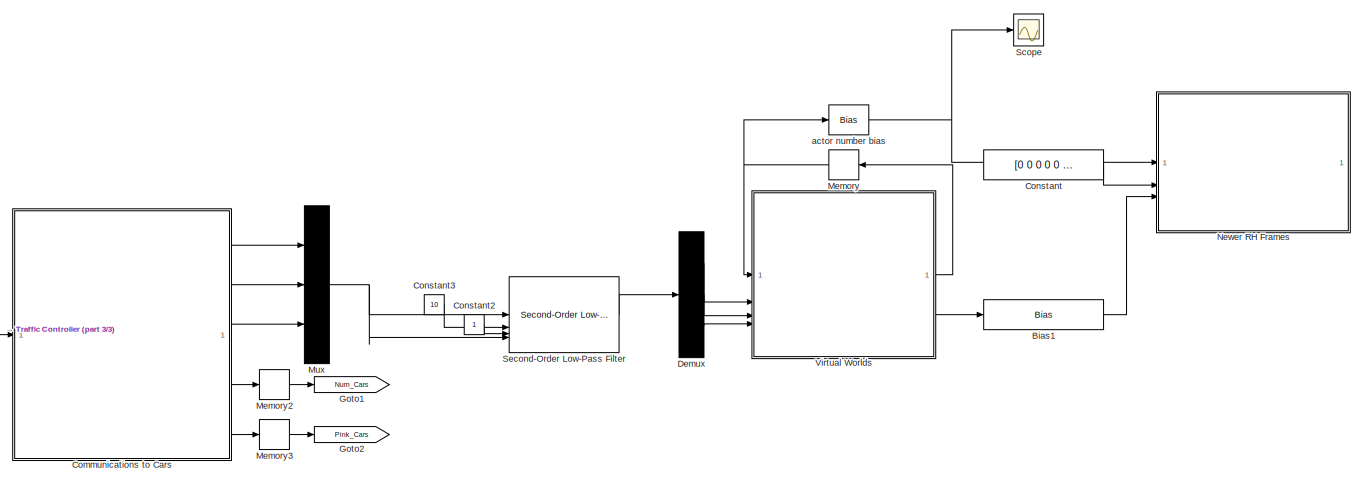
[diagram: root canvas - part 1/3, full width, middle band]
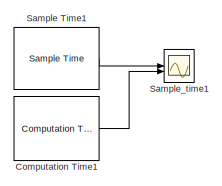
[diagram: root canvas - part 2/3, top left region]
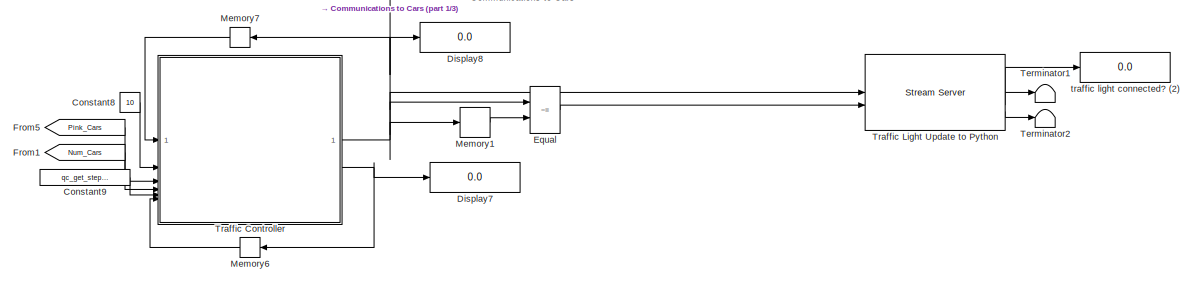
[diagram: root canvas - part 3/3, bottom center region]
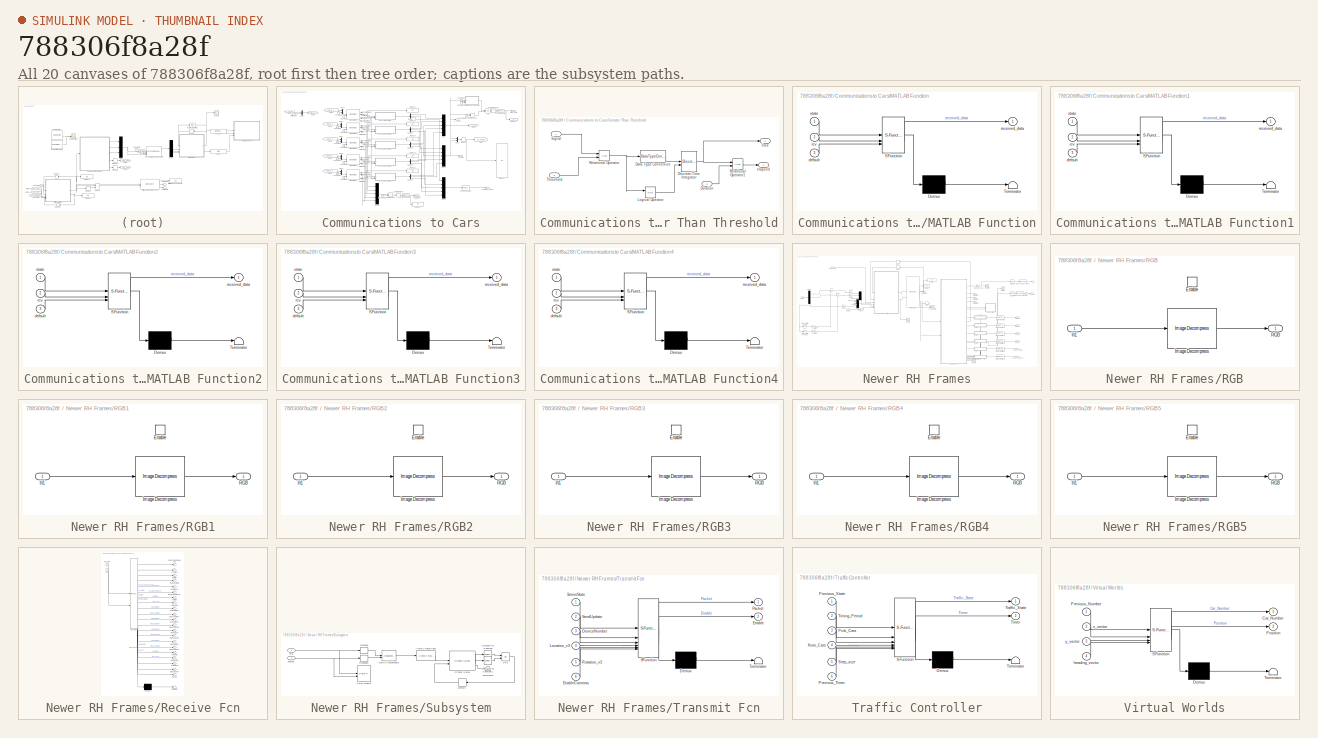
[diagram: thumbnail index - all 20 canvases of the model, root first then tree order]
MODEL slx_788306f8a28f
KIND model
CONFIG AbsTol = auto
CONFIG EnableMultiTasking = on
CONFIG FixedStep = Controller_Sample_Time
CONFIG MaxStep = auto
CONFIG MinStep = auto
CONFIG RelTol = 1e-3
CONFIG SampleTimeConstraint = Unconstrained
CONFIG SolverName = ode1
CONFIG StartTime = 0.0
CONFIG StopTime = inf
BLOCK [Bias] Bias1
  SaturateOnIntegerOverflow = off
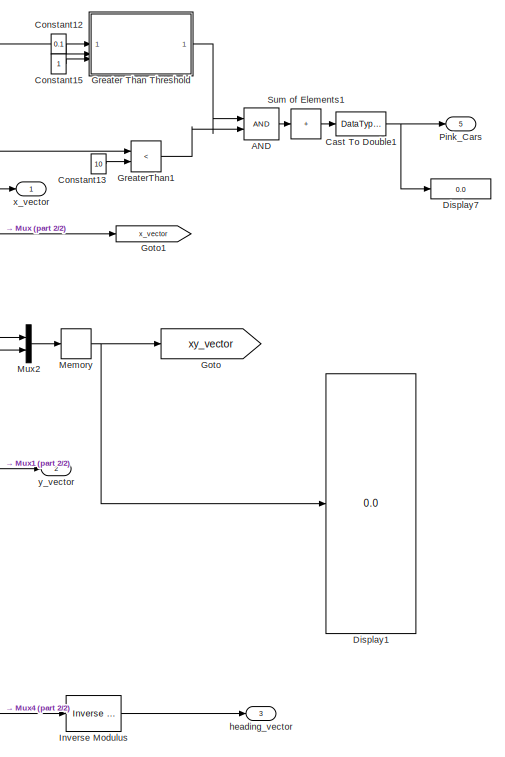
[diagram: Communications to Cars - part 1/2, right side, full height]
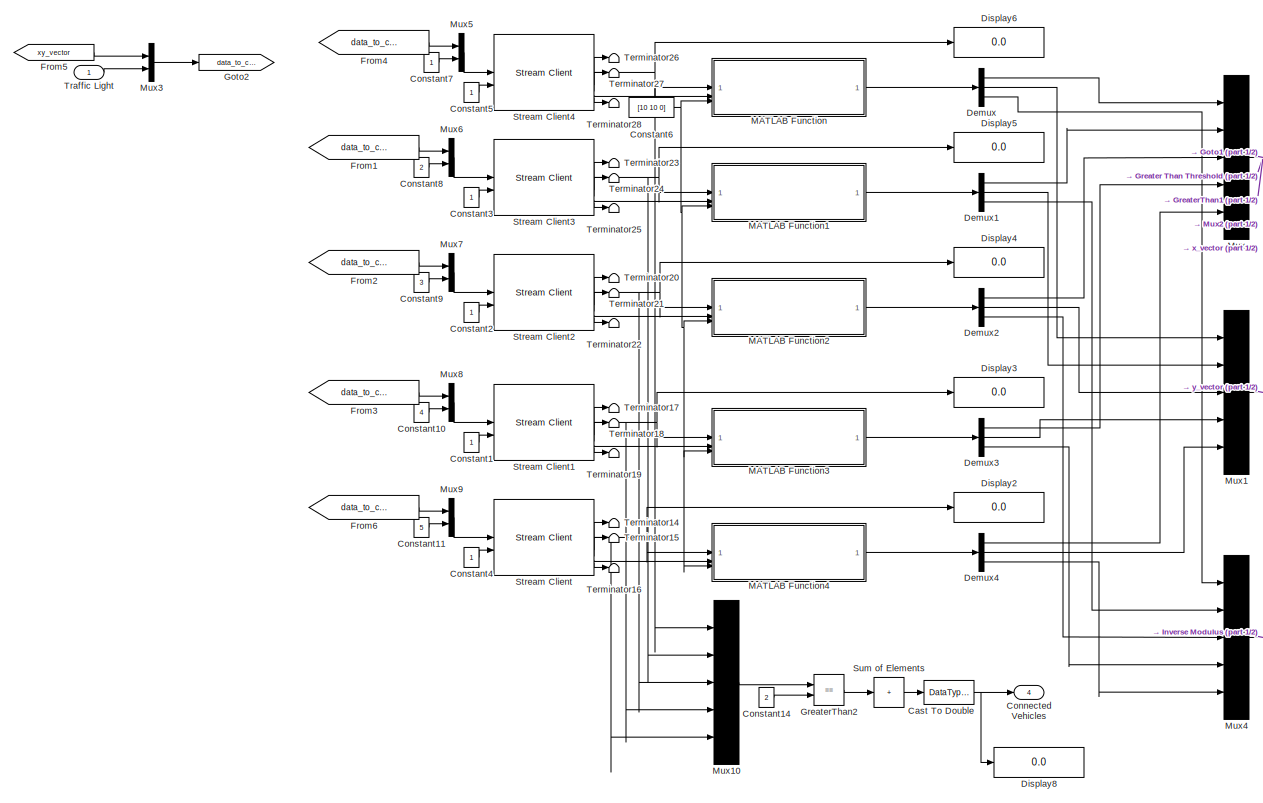
[diagram: Communications to Cars - part 2/2, center side, full height]
BLOCK [SubSystem] Communications to Cars
BLOCK [Logic] Communications to Cars/AND
  AllPortsSameDT = off
  IconShape = distinctive
  OutDataTypeStr = boolean
BLOCK [DataTypeConversion] Communications to Cars/Cast To Double
  OutDataTypeStr = double
  RndMeth = Floor
  SaturateOnIntegerOverflow = off
BLOCK [DataTypeConversion] Communications to Cars/Cast To Double1
  OutDataTypeStr = double
  RndMeth = Floor
  SaturateOnIntegerOverflow = off
BLOCK [Outport] Communications to Cars/Connected Vehicles
  Port = 4
BLOCK [Constant] Communications to Cars/Constant1
BLOCK [Constant] Communications to Cars/Constant10
  Value = 4
BLOCK [Constant] Communications to Cars/Constant11
  Value = 5
BLOCK [Constant] Communications to Cars/Constant12
  Value = 0.1
BLOCK [Constant] Communications to Cars/Constant13
  Value = 10
BLOCK [Constant] Communications to Cars/Constant14
  Value = 2
BLOCK [Constant] Communications to Cars/Constant15
BLOCK [Constant] Communications to Cars/Constant2
BLOCK [Constant] Communications to Cars/Constant3
BLOCK [Constant] Communications to Cars/Constant4
BLOCK [Constant] Communications to Cars/Constant5
BLOCK [Constant] Communications to Cars/Constant6
  Value = [10 10 0]
BLOCK [Constant] Communications to Cars/Constant7
BLOCK [Constant] Communications to Cars/Constant8
  Value = 2
BLOCK [Constant] Communications to Cars/Constant9
  Value = 3
BLOCK [Demux] Communications to Cars/Demux
  Outputs = 3
BLOCK [Demux] Communications to Cars/Demux1
  Outputs = 3
BLOCK [Demux] Communications to Cars/Demux2
  Outputs = 3
BLOCK [Demux] Communications to Cars/Demux3
  Outputs = 3
BLOCK [Demux] Communications to Cars/Demux4
  Outputs = 3
BLOCK [Display] Communications to Cars/Display1
  Decimation = 100
BLOCK [Display] Communications to Cars/Display2
  Decimation = 100
BLOCK [Display] Communications to Cars/Display3
  Decimation = 100
BLOCK [Display] Communications to Cars/Display4
  Decimation = 100
BLOCK [Display] Communications to Cars/Display5
  Decimation = 100
BLOCK [Display] Communications to Cars/Display6
  Decimation = 100
BLOCK [Display] Communications to Cars/Display7
  Decimation = 100
BLOCK [Display] Communications to Cars/Display8
  Decimation = 100
BLOCK [From] Communications to Cars/From1
  GotoTag = data_to_cars
BLOCK [From] Communications to Cars/From2
  GotoTag = data_to_cars
BLOCK [From] Communications to Cars/From3
  GotoTag = data_to_cars
BLOCK [From] Communications to Cars/From4
  GotoTag = data_to_cars
BLOCK [From] Communications to Cars/From5
  GotoTag = xy_vector
BLOCK [From] Communications to Cars/From6
  GotoTag = data_to_cars
BLOCK [Goto] Communications to Cars/Goto
  GotoTag = xy_vector
BLOCK [Goto] Communications to Cars/Goto1
  GotoTag = x_vector
BLOCK [Goto] Communications to Cars/Goto2
  GotoTag = data_to_cars
BLOCK [SubSystem] Communications to Cars/Greater Than Threshold
BLOCK [DataTypeConversion] Communications to Cars/Greater Than Threshold/Data Type Conversion
  RndMeth = Floor
  SaturateOnIntegerOverflow = off
BLOCK [DiscreteIntegrator] Communications to Cars/Greater Than Threshold/Discrete-Time Integrator
  ExternalReset = level
  ICPrevOutput = DiscIntNeverNeededParam
  ICPrevScaledInput = DiscIntNeverNeededParam
  NameLocation = top
  Priority = 1
  SampleTime = qc_get_step_size
BLOCK [Inport] Communications to Cars/Greater Than Threshold/Duration
  Port = 3
BLOCK [Logic] Communications to Cars/Greater Than Threshold/Logical Operator
  AllPortsSameDT = off
  Operator = NOT
  OutDataTypeStr = boolean
BLOCK [RelationalOperator] Communications to Cars/Greater Than Threshold/Relational Operator
  InputSameDT = off
BLOCK [RelationalOperator] Communications to Cars/Greater Than Threshold/Relational Operator1
  InputSameDT = off
BLOCK [Inport] Communications to Cars/Greater Than Threshold/Signal
BLOCK [Inport] Communications to Cars/Greater Than Threshold/Threshold
  Port = 2
BLOCK [Outport] Communications to Cars/Greater Than Threshold/elapsed
  VectorParamsAs1DForOutWhenUnconnected = off
BLOCK [Outport] Communications to Cars/Greater Than Threshold/time
  Port = 2
  VectorParamsAs1DForOutWhenUnconnected = off
BLOCK [RelationalOperator] Communications to Cars/GreaterThan1
  InputSameDT = off
  Operator = <
  OutDataTypeStr = boolean
  RndMeth = Simplest
BLOCK [RelationalOperator] Communications to Cars/GreaterThan2
  InputSameDT = off
  Operator = ==
  OutDataTypeStr = boolean
  RndMeth = Simplest
BLOCK [Reference] Communications to Cars/Inverse Modulus  REF=quarc_library/Discontinuities/Inverse
Modulus
  SourceBlock = quarc_library/Discontinuities/Inverse\nModulus
  SourceProductName = QUARC Targets
  SourceType = Inverse Modulus
BLOCK [SubSystem] Communications to Cars/MATLAB Function
  ErrorFcn = Stateflow.Translate.translate
  PermitHierarchicalResolution = ExplicitOnly
  SFBlockType = MATLAB Function
  TreatAsAtomicUnit = on
BLOCK [Demux] Communications to Cars/MATLAB Function/ Demux 
  Outputs = 1
BLOCK [S-Function] Communications to Cars/MATLAB Function/ SFunction 
  EnableBusSupport = on
  FunctionName = sf_sfun
  PortCounts = [3 2]
  SFcnIsStateOwnerBlock = off
  SFunctionDeploymentMode = off
  Tag = Stateflow S-Function 2
BLOCK [Terminator] Communications to Cars/MATLAB Function/ Terminator 
BLOCK [Inport] Communications to Cars/MATLAB Function/default
  Port = 3
BLOCK [Inport] Communications to Cars/MATLAB Function/rcv
  Port = 2
BLOCK [Outport] Communications to Cars/MATLAB Function/received_data
  VectorParamsAs1DForOutWhenUnconnected = off
BLOCK [Inport] Communications to Cars/MATLAB Function/state
BLOCK [SubSystem] Communications to Cars/MATLAB Function1
  ErrorFcn = Stateflow.Translate.translate
  PermitHierarchicalResolution = ExplicitOnly
  SFBlockType = MATLAB Function
  TreatAsAtomicUnit = on
BLOCK [Demux] Communications to Cars/MATLAB Function1/ Demux 
  Outputs = 1
BLOCK [S-Function] Communications to Cars/MATLAB Function1/ SFunction 
  EnableBusSupport = on
  FunctionName = sf_sfun
  PortCounts = [3 2]
  SFcnIsStateOwnerBlock = off
  SFunctionDeploymentMode = off
  Tag = Stateflow S-Function 1
BLOCK [Terminator] Communications to Cars/MATLAB Function1/ Terminator 
BLOCK [Inport] Communications to Cars/MATLAB Function1/default
  Port = 3
BLOCK [Inport] Communications to Cars/MATLAB Function1/rcv
  Port = 2
BLOCK [Outport] Communications to Cars/MATLAB Function1/received_data
  VectorParamsAs1DForOutWhenUnconnected = off
BLOCK [Inport] Communications to Cars/MATLAB Function1/state
BLOCK [SubSystem] Communications to Cars/MATLAB Function2
  ErrorFcn = Stateflow.Translate.translate
  PermitHierarchicalResolution = ExplicitOnly
  SFBlockType = MATLAB Function
  TreatAsAtomicUnit = on
BLOCK [Demux] Communications to Cars/MATLAB Function2/ Demux 
  Outputs = 1
BLOCK [S-Function] Communications to Cars/MATLAB Function2/ SFunction 
  EnableBusSupport = on
  FunctionName = sf_sfun
  PortCounts = [3 2]
  SFcnIsStateOwnerBlock = off
  SFunctionDeploymentMode = off
  Tag = Stateflow S-Function 3
BLOCK [Terminator] Communications to Cars/MATLAB Function2/ Terminator 
BLOCK [Inport] Communications to Cars/MATLAB Function2/default
  Port = 3
BLOCK [Inport] Communications to Cars/MATLAB Function2/rcv
  Port = 2
BLOCK [Outport] Communications to Cars/MATLAB Function2/received_data
  VectorParamsAs1DForOutWhenUnconnected = off
BLOCK [Inport] Communications to Cars/MATLAB Function2/state
BLOCK [SubSystem] Communications to Cars/MATLAB Function3
  ErrorFcn = Stateflow.Translate.translate
  PermitHierarchicalResolution = ExplicitOnly
  SFBlockType = MATLAB Function
  TreatAsAtomicUnit = on
BLOCK [Demux] Communications to Cars/MATLAB Function3/ Demux 
  Outputs = 1
BLOCK [S-Function] Communications to Cars/MATLAB Function3/ SFunction 
  EnableBusSupport = on
  FunctionName = sf_sfun
  PortCounts = [3 2]
  SFcnIsStateOwnerBlock = off
  SFunctionDeploymentMode = off
  Tag = Stateflow S-Function 4
BLOCK [Terminator] Communications to Cars/MATLAB Function3/ Terminator 
BLOCK [Inport] Communications to Cars/MATLAB Function3/default
  Port = 3
BLOCK [Inport] Communications to Cars/MATLAB Function3/rcv
  Port = 2
BLOCK [Outport] Communications to Cars/MATLAB Function3/received_data
  VectorParamsAs1DForOutWhenUnconnected = off
BLOCK [Inport] Communications to Cars/MATLAB Function3/state
BLOCK [SubSystem] Communications to Cars/MATLAB Function4
  ErrorFcn = Stateflow.Translate.translate
  PermitHierarchicalResolution = ExplicitOnly
  SFBlockType = MATLAB Function
  TreatAsAtomicUnit = on
BLOCK [Demux] Communications to Cars/MATLAB Function4/ Demux 
  Outputs = 1
BLOCK [S-Function] Communications to Cars/MATLAB Function4/ SFunction 
  EnableBusSupport = on
  FunctionName = sf_sfun
  PortCounts = [3 2]
  SFcnIsStateOwnerBlock = off
  SFunctionDeploymentMode = off
  Tag = Stateflow S-Function 5
BLOCK [Terminator] Communications to Cars/MATLAB Function4/ Terminator 
BLOCK [Inport] Communications to Cars/MATLAB Function4/default
  Port = 3
BLOCK [Inport] Communications to Cars/MATLAB Function4/rcv
  Port = 2
BLOCK [Outport] Communications to Cars/MATLAB Function4/received_data
  VectorParamsAs1DForOutWhenUnconnected = off
BLOCK [Inport] Communications to Cars/MATLAB Function4/state
BLOCK [Memory] Communications to Cars/Memory
  InheritSampleTime = on
  InitialCondition = 10*ones(1,10)
  LinearizeAsDelay = on
  LinearizeMemory = on
BLOCK [Mux] Communications to Cars/Mux
  DisplayOption = bar
  Inputs = 5
BLOCK [Mux] Communications to Cars/Mux1
  DisplayOption = bar
  Inputs = 5
BLOCK [Mux] Communications to Cars/Mux10
  DisplayOption = bar
  Inputs = 5
BLOCK [Mux] Communications to Cars/Mux2
  DisplayOption = bar
  Inputs = 2
BLOCK [Mux] Communications to Cars/Mux3
  DisplayOption = bar
  Inputs = 2
BLOCK [Mux] Communications to Cars/Mux4
  DisplayOption = bar
  Inputs = 5
BLOCK [Mux] Communications to Cars/Mux5
  DisplayOption = bar
  Inputs = 2
BLOCK [Mux] Communications to Cars/Mux6
  DisplayOption = bar
  Inputs = 2
BLOCK [Mux] Communications to Cars/Mux7
  DisplayOption = bar
  Inputs = 2
BLOCK [Mux] Communications to Cars/Mux8
  DisplayOption = bar
  Inputs = 2
BLOCK [Mux] Communications to Cars/Mux9
  DisplayOption = bar
  Inputs = 2
BLOCK [Outport] Communications to Cars/Pink_Cars
  Port = 5
BLOCK [Reference] Communications to Cars/Stream Client  REF=quarc_library/Communications/Basic/Stream Client
  AttributesFormatString = "tcpip://localhost:5555?nagle='off'"
  SourceBlock = quarc_library/Communications/Basic/Stream Client
  SourceProductName = QUARC Targets
  SourceType = Stream Client
BLOCK [Reference] Communications to Cars/Stream Client1  REF=quarc_library/Communications/Basic/Stream Client
  AttributesFormatString = "tcpip://localhost:4444?nagle='off'"
  SourceBlock = quarc_library/Communications/Basic/Stream Client
  SourceProductName = QUARC Targets
  SourceType = Stream Client
BLOCK [Reference] Communications to Cars/Stream Client2  REF=quarc_library/Communications/Basic/Stream Client
  AttributesFormatString = "tcpip://192.168.2.13:1111?nagle='off'"
  SourceBlock = quarc_library/Communications/Basic/Stream Client
  SourceProductName = QUARC Targets
  SourceType = Stream Client
BLOCK [Reference] Communications to Cars/Stream Client3  REF=quarc_library/Communications/Basic/Stream Client
  AttributesFormatString = "tcpip://192.168.2.12:1111?nagle='off'"
  SourceBlock = quarc_library/Communications/Basic/Stream Client
  SourceProductName = QUARC Targets
  SourceType = Stream Client
BLOCK [Reference] Communications to Cars/Stream Client4  REF=quarc_library/Communications/Basic/Stream Client
  AttributesFormatString = "tcpip://192.168.2.11:1111?nagle='off'"
  SourceBlock = quarc_library/Communications/Basic/Stream Client
  SourceProductName = QUARC Targets
  SourceType = Stream Client
BLOCK [Sum] Communications to Cars/Sum of Elements
  IconShape = rectangular
  Inputs = +
BLOCK [Sum] Communications to Cars/Sum of Elements1
  IconShape = rectangular
  Inputs = +
BLOCK [Terminator] Communications to Cars/Terminator14
BLOCK [Terminator] Communications to Cars/Terminator15
BLOCK [Terminator] Communications to Cars/Terminator16
BLOCK [Terminator] Communications to Cars/Terminator17
BLOCK [Terminator] Communications to Cars/Terminator18
BLOCK [Terminator] Communications to Cars/Terminator19
BLOCK [Terminator] Communications to Cars/Terminator20
BLOCK [Terminator] Communications to Cars/Terminator21
BLOCK [Terminator] Communications to Cars/Terminator22
BLOCK [Terminator] Communications to Cars/Terminator23
BLOCK [Terminator] Communications to Cars/Terminator24
BLOCK [Terminator] Communications to Cars/Terminator25
BLOCK [Terminator] Communications to Cars/Terminator26
BLOCK [Terminator] Communications to Cars/Terminator27
BLOCK [Terminator] Communications to Cars/Terminator28
BLOCK [Inport] Communications to Cars/Traffic Light
BLOCK [Outport] Communications to Cars/heading_vector
  Port = 3
BLOCK [Outport] Communications to Cars/x_vector
BLOCK [Outport] Communications to Cars/y_vector
  Port = 2
BLOCK [Reference] Computation Time1  REF=quarc_library/Sources/Time/Computation Time
  SourceBlock = quarc_library/Sources/Time/Computation Time
  SourceProductName = QUARC Targets
  SourceType = Computation Time
BLOCK [Constant] Constant
  Value = [0 0 0 0 0 0]
BLOCK [Constant] Constant2
BLOCK [Constant] Constant3
  Value = 10
BLOCK [Constant] Constant8
  Value = 10
BLOCK [Constant] Constant9
  Value = qc_get_step_size
BLOCK [Demux] Demux
  Outputs = 3
BLOCK [Display] Display7
BLOCK [Display] Display8
BLOCK [RelationalOperator] Equal
  InputSameDT = off
  Operator = ~=
  OutDataTypeStr = boolean
  RndMeth = Simplest
BLOCK [From] From1
  GotoTag = Num_Cars
BLOCK [From] From5
  GotoTag = Pink_Cars
BLOCK [Goto] Goto1
  GotoTag = Num_Cars
BLOCK [Goto] Goto2
  GotoTag = Pink_Cars
BLOCK [Memory] Memory
  InheritSampleTime = on
  InitialCondition = 1
  LinearizeAsDelay = on
  LinearizeMemory = on
  NameLocation = top
BLOCK [Memory] Memory1
BLOCK [Memory] Memory2
  InheritSampleTime = on
  LinearizeAsDelay = on
  LinearizeMemory = on
BLOCK [Memory] Memory3
  InheritSampleTime = on
  LinearizeAsDelay = on
  LinearizeMemory = on
BLOCK [Memory] Memory6
  InheritSampleTime = on
  LinearizeAsDelay = on
  LinearizeMemory = on
  NameLocation = top
BLOCK [Memory] Memory7
  InheritSampleTime = on
  InitialCondition = 1
  LinearizeAsDelay = on
  LinearizeMemory = on
  NameLocation = top
BLOCK [Mux] Mux
  DisplayOption = bar
  Inputs = 3
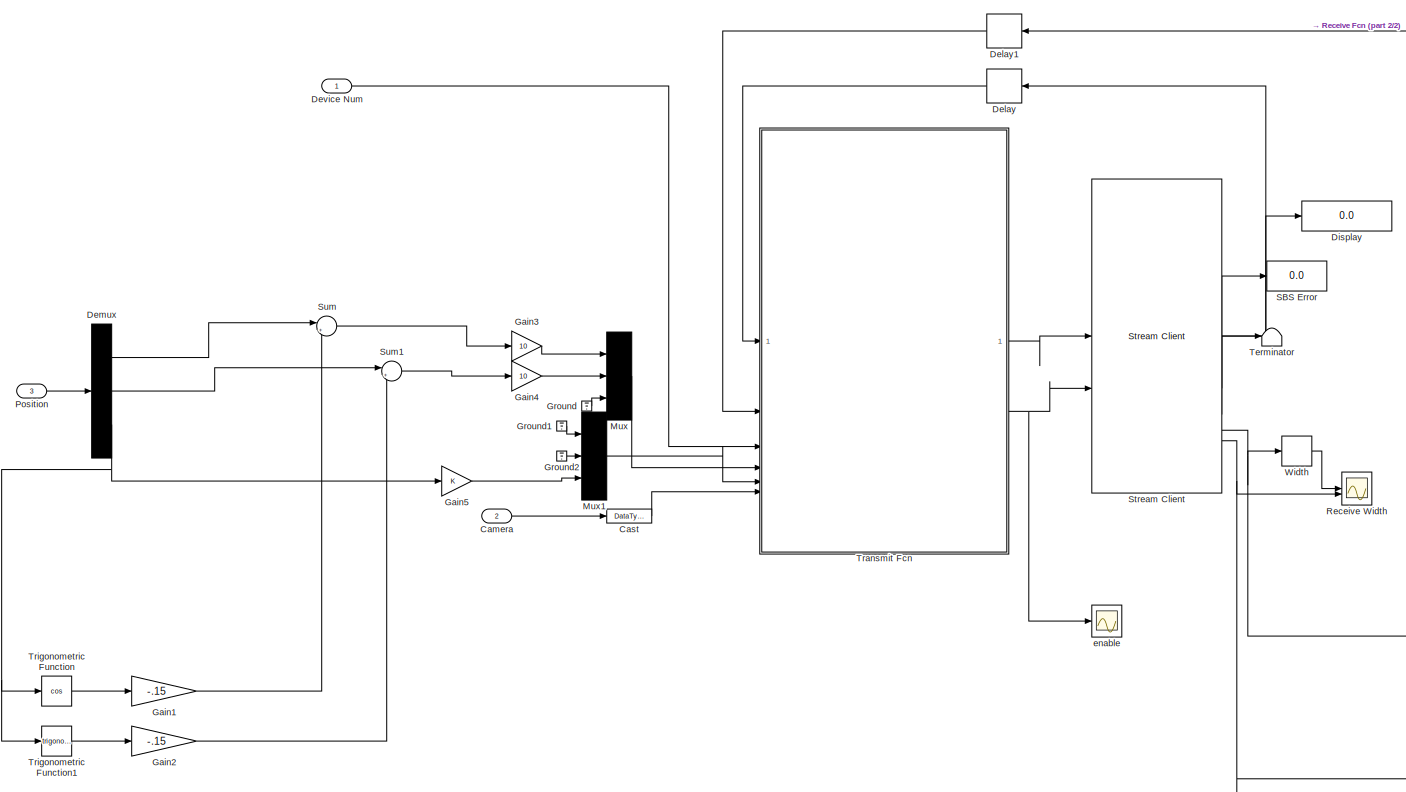
[diagram: Newer RH Frames - part 1/2, middle left region]
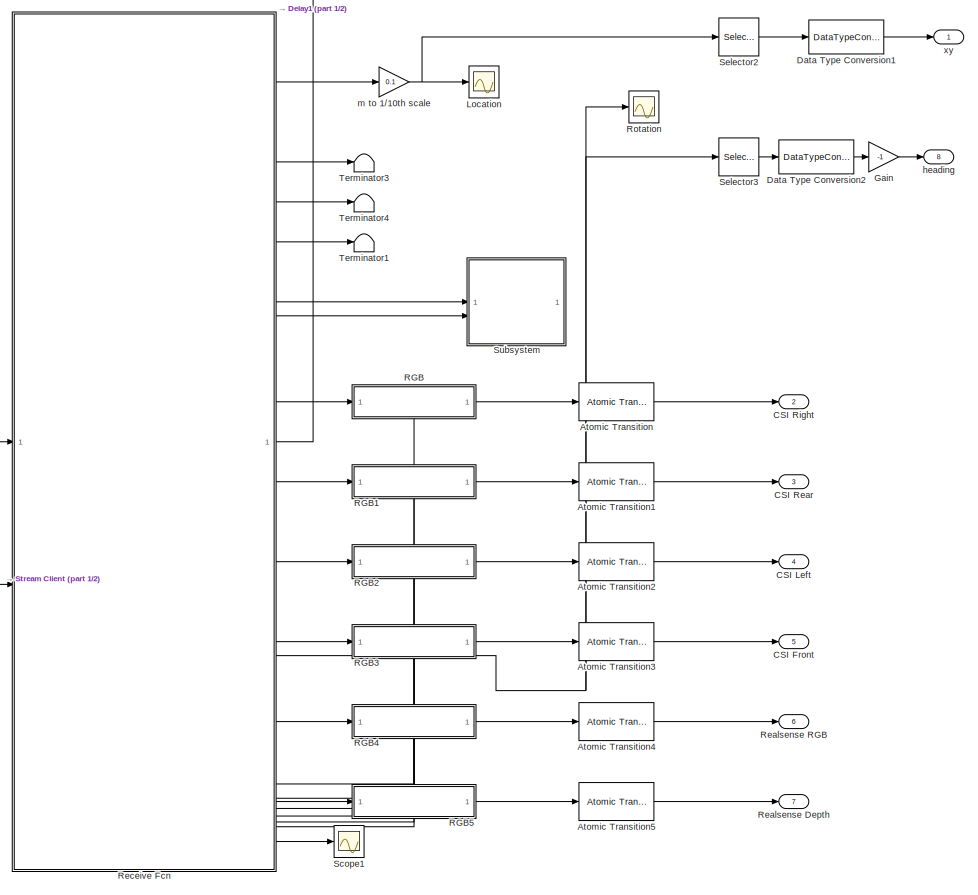
[diagram: Newer RH Frames - part 2/2, right side, full height]
BLOCK [SubSystem] Newer RH Frames
BLOCK [Reference] Newer RH Frames/Atomic Transition  REF=quarc_library/Advanced/Asynchronous/Atomic Transition
  SourceBlock = quarc_library/Advanced/Asynchronous/Atomic Transition
  SourceProductName = QUARC Targets
  SourceType = Atomic Transition
BLOCK [Reference] Newer RH Frames/Atomic Transition1  REF=quarc_library/Advanced/Asynchronous/Atomic Transition
  SourceBlock = quarc_library/Advanced/Asynchronous/Atomic Transition
  SourceProductName = QUARC Targets
  SourceType = Atomic Transition
BLOCK [Reference] Newer RH Frames/Atomic Transition2  REF=quarc_library/Advanced/Asynchronous/Atomic Transition
  SourceBlock = quarc_library/Advanced/Asynchronous/Atomic Transition
  SourceProductName = QUARC Targets
  SourceType = Atomic Transition
BLOCK [Reference] Newer RH Frames/Atomic Transition3  REF=quarc_library/Advanced/Asynchronous/Atomic Transition
  SourceBlock = quarc_library/Advanced/Asynchronous/Atomic Transition
  SourceProductName = QUARC Targets
  SourceType = Atomic Transition
BLOCK [Reference] Newer RH Frames/Atomic Transition4  REF=quarc_library/Advanced/Asynchronous/Atomic Transition
  SourceBlock = quarc_library/Advanced/Asynchronous/Atomic Transition
  SourceProductName = QUARC Targets
  SourceType = Atomic Transition
BLOCK [Reference] Newer RH Frames/Atomic Transition5  REF=quarc_library/Advanced/Asynchronous/Atomic Transition
  SourceBlock = quarc_library/Advanced/Asynchronous/Atomic Transition
  SourceProductName = QUARC Targets
  SourceType = Atomic Transition
BLOCK [Outport] Newer RH Frames/CSI Front
  Port = 5
BLOCK [Outport] Newer RH Frames/CSI Left
  Port = 4
BLOCK [Outport] Newer RH Frames/CSI Rear
  Port = 3
BLOCK [Outport] Newer RH Frames/CSI Right
  Port = 2
BLOCK [Inport] Newer RH Frames/Camera
  Port = 2
BLOCK [DataTypeConversion] Newer RH Frames/Cast
  OutDataTypeStr = int32
  RndMeth = Floor
  SaturateOnIntegerOverflow = off
BLOCK [DataTypeConversion] Newer RH Frames/Data Type Conversion1
  RndMeth = Floor
  SaturateOnIntegerOverflow = off
BLOCK [DataTypeConversion] Newer RH Frames/Data Type Conversion2
  RndMeth = Floor
  SaturateOnIntegerOverflow = off
BLOCK [Delay] Newer RH Frames/Delay
  DelayLength = 1
  InputPortMap = u0
BLOCK [Delay] Newer RH Frames/Delay1
  DelayLength = 1
  InputPortMap = u0
BLOCK [Demux] Newer RH Frames/Demux
  Outputs = 3
BLOCK [Inport] Newer RH Frames/Device Num
BLOCK [Display] Newer RH Frames/Display
BLOCK [Gain] Newer RH Frames/Gain
  Gain = -1
BLOCK [Gain] Newer RH Frames/Gain1
  Gain = -.15
BLOCK [Gain] Newer RH Frames/Gain2
  Gain = -.15
BLOCK [Gain] Newer RH Frames/Gain3
  Gain = 10
BLOCK [Gain] Newer RH Frames/Gain4
  Gain = 10
BLOCK [Gain] Newer RH Frames/Gain5
BLOCK [Ground] Newer RH Frames/Ground
BLOCK [Ground] Newer RH Frames/Ground1
BLOCK [Ground] Newer RH Frames/Ground2
BLOCK [Scope] Newer RH Frames/Location
  Floating = off
  NumInputPorts = 1
  ScopeSpecificationString = Simulink.scopes.TimeScopeBlockCfg('CurrentConfiguration', extmgr.ConfigurationSet(extmgr.Configuration('Core','General UI',true,'DisplayFullSourceName',false,'ShowMainToolbar',true),extmgr.Configuration('Sources','WiredSimulink',true,'DataLogging',false,'DataLoggingVariableName','ScopeData1','DataLoggingLimitDataPoints',false,'DataLoggingMaxPoints','5000','DataLoggingDecimateData',false,'DataLoggi...<+1997ch>
BLOCK [Mux] Newer RH Frames/Mux
  DisplayOption = bar
  Inputs = 3
BLOCK [Mux] Newer RH Frames/Mux1
  DisplayOption = bar
  Inputs = 3
BLOCK [Inport] Newer RH Frames/Position
  Port = 3
BLOCK [SubSystem] Newer RH Frames/RGB
BLOCK [EnablePort] Newer RH Frames/RGB/Enable
  StatesWhenEnabling = reset
BLOCK [Reference] Newer RH Frames/RGB/Image Decompress  REF=quarc_library/Image Processing/Generic/Image Decompress
  AttributesFormatString = (%<algorithm>)
  SourceBlock = quarc_library/Image Processing/Generic/Image Decompress
  SourceProductName = QUARC Targets
  SourceType = Image Decompress
BLOCK [Inport] Newer RH Frames/RGB/In1
BLOCK [Outport] Newer RH Frames/RGB/RGB
  VectorParamsAs1DForOutWhenUnconnected = off
BLOCK [SubSystem] Newer RH Frames/RGB1
BLOCK [EnablePort] Newer RH Frames/RGB1/Enable
  StatesWhenEnabling = reset
BLOCK [Reference] Newer RH Frames/RGB1/Image Decompress  REF=quarc_library/Image Processing/Generic/Image Decompress
  AttributesFormatString = (%<algorithm>)
  SourceBlock = quarc_library/Image Processing/Generic/Image Decompress
  SourceProductName = QUARC Targets
  SourceType = Image Decompress
BLOCK [Inport] Newer RH Frames/RGB1/In1
BLOCK [Outport] Newer RH Frames/RGB1/RGB
  VectorParamsAs1DForOutWhenUnconnected = off
BLOCK [SubSystem] Newer RH Frames/RGB2
BLOCK [EnablePort] Newer RH Frames/RGB2/Enable
  StatesWhenEnabling = reset
BLOCK [Reference] Newer RH Frames/RGB2/Image Decompress  REF=quarc_library/Image Processing/Generic/Image Decompress
  AttributesFormatString = (%<algorithm>)
  SourceBlock = quarc_library/Image Processing/Generic/Image Decompress
  SourceProductName = QUARC Targets
  SourceType = Image Decompress
BLOCK [Inport] Newer RH Frames/RGB2/In1
BLOCK [Outport] Newer RH Frames/RGB2/RGB
  VectorParamsAs1DForOutWhenUnconnected = off
BLOCK [SubSystem] Newer RH Frames/RGB3
BLOCK [EnablePort] Newer RH Frames/RGB3/Enable
  StatesWhenEnabling = reset
BLOCK [Reference] Newer RH Frames/RGB3/Image Decompress  REF=quarc_library/Image Processing/Generic/Image Decompress
  AttributesFormatString = (%<algorithm>)
  SourceBlock = quarc_library/Image Processing/Generic/Image Decompress
  SourceProductName = QUARC Targets
  SourceType = Image Decompress
BLOCK [Inport] Newer RH Frames/RGB3/In1
BLOCK [Outport] Newer RH Frames/RGB3/RGB
  VectorParamsAs1DForOutWhenUnconnected = off
BLOCK [SubSystem] Newer RH Frames/RGB4
BLOCK [EnablePort] Newer RH Frames/RGB4/Enable
  StatesWhenEnabling = reset
BLOCK [Reference] Newer RH Frames/RGB4/Image Decompress  REF=quarc_library/Image Processing/Generic/Image Decompress
  AttributesFormatString = (%<algorithm>)
  SourceBlock = quarc_library/Image Processing/Generic/Image Decompress
  SourceProductName = QUARC Targets
  SourceType = Image Decompress
BLOCK [Inport] Newer RH Frames/RGB4/In1
BLOCK [Outport] Newer RH Frames/RGB4/RGB
  VectorParamsAs1DForOutWhenUnconnected = off
BLOCK [SubSystem] Newer RH Frames/RGB5
BLOCK [EnablePort] Newer RH Frames/RGB5/Enable
  StatesWhenEnabling = reset
BLOCK [Reference] Newer RH Frames/RGB5/Image Decompress  REF=quarc_library/Image Processing/Generic/Image Decompress
  AttributesFormatString = (%<algorithm>)
  SourceBlock = quarc_library/Image Processing/Generic/Image Decompress
  SourceProductName = QUARC Targets
  SourceType = Image Decompress
BLOCK [Inport] Newer RH Frames/RGB5/In1
BLOCK [Outport] Newer RH Frames/RGB5/RGB
  VectorParamsAs1DForOutWhenUnconnected = off
BLOCK [Outport] Newer RH Frames/Realsense Depth
  Port = 7
BLOCK [Outport] Newer RH Frames/Realsense RGB
  Port = 6
BLOCK [SubSystem] Newer RH Frames/Receive Fcn
  ErrorFcn = Stateflow.Translate.translate
  PermitHierarchicalResolution = ExplicitOnly
  SFBlockType = MATLAB Function
  TreatAsAtomicUnit = on
BLOCK [Demux] Newer RH Frames/Receive Fcn/ Demux 
  Outputs = 1
BLOCK [S-Function] Newer RH Frames/Receive Fcn/ SFunction 
  EnableBusSupport = on
  FunctionName = sf_sfun
  PortCounts = [2 22]
  SFcnIsStateOwnerBlock = off
  SFunctionDeploymentMode = off
  Tag = Stateflow S-Function 9
BLOCK [Terminator] Newer RH Frames/Receive Fcn/ Terminator 
BLOCK [Outport] Newer RH Frames/Receive Fcn/BumpForward
  Port = 4
  VectorParamsAs1DForOutWhenUnconnected = off
BLOCK [Outport] Newer RH Frames/Receive Fcn/BumpRear
  Port = 5
  VectorParamsAs1DForOutWhenUnconnected = off
BLOCK [Outport] Newer RH Frames/Receive Fcn/Debug
  Port = 21
BLOCK [Outport] Newer RH Frames/Receive Fcn/EnvironmentReset
  Port = 6
  VectorParamsAs1DForOutWhenUnconnected = off
BLOCK [Outport] Newer RH Frames/Receive Fcn/ImageCSIFront
  Port = 16
BLOCK [Outport] Newer RH Frames/Receive Fcn/ImageCSILeft
  Port = 14
BLOCK [Outport] Newer RH Frames/Receive Fcn/ImageCSIRear
  Port = 12
BLOCK [Outport] Newer RH Frames/Receive Fcn/ImageCSIRight
  Port = 10
BLOCK [Outport] Newer RH Frames/Receive Fcn/ImageDepth
  Port = 20
BLOCK [Outport] Newer RH Frames/Receive Fcn/ImageRGB
  Port = 18
BLOCK [Outport] Newer RH Frames/Receive Fcn/LidarAngle
  Port = 8
BLOCK [Outport] Newer RH Frames/Receive Fcn/LidarDist
  Port = 7
BLOCK [Outport] Newer RH Frames/Receive Fcn/Location
  Port = 2
  VectorParamsAs1DForOutWhenUnconnected = off
BLOCK [Inport] Newer RH Frames/Receive Fcn/New
  Port = 2
BLOCK [Outport] Newer RH Frames/Receive Fcn/NewCSIFront
  Port = 15
BLOCK [Outport] Newer RH Frames/Receive Fcn/NewCSILeft
  Port = 13
BLOCK [Outport] Newer RH Frames/Receive Fcn/NewCSIRear
  Port = 11
BLOCK [Outport] Newer RH Frames/Receive Fcn/NewCSIRight
  Port = 9
BLOCK [Outport] Newer RH Frames/Receive Fcn/NewDepth
  Port = 19
BLOCK [Outport] Newer RH Frames/Receive Fcn/NewRGB
  Port = 17
BLOCK [Inport] Newer RH Frames/Receive Fcn/Receive
BLOCK [Outport] Newer RH Frames/Receive Fcn/RequestServerUpdate
  VectorParamsAs1DForOutWhenUnconnected = off
BLOCK [Outport] Newer RH Frames/Receive Fcn/Rotation
  Port = 3
  VectorParamsAs1DForOutWhenUnconnected = off
BLOCK [Scope] Newer RH Frames/Receive Width
  Floating = off
  NumInputPorts = 2
  ScopeSpecificationString = Simulink.scopes.TimeScopeBlockCfg('CurrentConfiguration', extmgr.ConfigurationSet(extmgr.Configuration('Core','General UI',true,'DisplayFullSourceName',false,'ShowMainToolbar',true),extmgr.Configuration('Sources','WiredSimulink',true,'DataLogging',false,'DataLoggingVariableName','ScopeData2','DataLoggingLimitDataPoints',false,'DataLoggingMaxPoints','5000','DataLoggingDecimateData',false,'DataLoggi...<+2784ch>
BLOCK [Scope] Newer RH Frames/Rotation
  Floating = off
  NumInputPorts = 1
  ScopeSpecificationString = Simulink.scopes.TimeScopeBlockCfg('CurrentConfiguration', extmgr.ConfigurationSet(extmgr.Configuration('Core','General UI',true,'DisplayFullSourceName',false,'ShowMainToolbar',true),extmgr.Configuration('Sources','WiredSimulink',true,'DataLogging',false,'DataLoggingVariableName','ScopeData3','DataLoggingLimitDataPoints',false,'DataLoggingMaxPoints','5000','DataLoggingDecimateData',false,'DataLoggi...<+2008ch>
BLOCK [Display] Newer RH Frames/SBS Error
BLOCK [Scope] Newer RH Frames/Scope1
  Floating = off
  NumInputPorts = 1
  ScopeSpecificationString = Simulink.scopes.TimeScopeBlockCfg('CurrentConfiguration', extmgr.ConfigurationSet(extmgr.Configuration('Core','General UI',true,'DisplayFullSourceName',false,'ShowMainToolbar',true),extmgr.Configuration('Sources','WiredSimulink',true,'DataLogging',false,'DataLoggingVariableName','ScopeData4','DataLoggingLimitDataPoints',false,'DataLoggingMaxPoints','5000','DataLoggingDecimateData',false,'DataLoggi...<+2010ch>
BLOCK [Selector] Newer RH Frames/Selector2
  IndexOptions = Index vector (dialog)
  Indices = 1:2
  InputPortWidth = 3
  OutputSizes = 1
BLOCK [Selector] Newer RH Frames/Selector3
  IndexOptions = Index vector (dialog)
  Indices = 3
  InputPortWidth = 3
  OutputSizes = 1
BLOCK [Reference] Newer RH Frames/Stream Client  REF=quarc_library/Communications/Basic/Stream Client
  AttributesFormatString = "tcpip://localhost:18000?nagle='off'"
  SourceBlock = quarc_library/Communications/Basic/Stream Client
  SourceProductName = QUARC Targets
  SourceType = Stream Client
BLOCK [SubSystem] Newer RH Frames/Subsystem
BLOCK [Reference] Newer RH Frames/Subsystem/Atomic Transition6  REF=quarc_library/Advanced/Asynchronous/Atomic Transition
  SourceBlock = quarc_library/Advanced/Asynchronous/Atomic Transition
  SourceProductName = QUARC Targets
  SourceType = Atomic Transition
BLOCK [Reference] Newer RH Frames/Subsystem/Compare To Constant  REF=simulink/Logic and Bit
Operations/Compare
To Constant
  SourceBlock = simulink/Logic and Bit\nOperations/Compare\nTo Constant
  SourceType = Compare To Constant
BLOCK [Reference] Newer RH Frames/Subsystem/Compare To Constant1  REF=simulink/Logic and Bit
Operations/Compare
To Constant
  SourceBlock = simulink/Logic and Bit\nOperations/Compare\nTo Constant
  SourceType = Compare To Constant
BLOCK [Concatenate] Newer RH Frames/Subsystem/Matrix Concatenate
  ConcatenateDimension = 3
  Mode = Multidimensional array
BLOCK [Memory] Newer RH Frames/Subsystem/Memory
  InheritSampleTime = on
  NameLocation = top
BLOCK [Logic] Newer RH Frames/Subsystem/OR3
  AllPortsSameDT = off
  IconShape = distinctive
  Operator = OR
  OutDataTypeStr = boolean
BLOCK [Reference] Newer RH Frames/Subsystem/Polar Figure1  REF=quarc_library/Sinks/Figures/Polar Figure
  Commented = on
  SourceBlock = quarc_library/Sinks/Figures/Polar Figure
  SourceProductName = QUARC Targets
  SourceType = Polar Figure
BLOCK [Reshape] Newer RH Frames/Subsystem/Reshape
  OutputDimensionality = Customize
  OutputDimensions = [64,64]
BLOCK [Reshape] Newer RH Frames/Subsystem/Reshape1
  OutputDimensionality = Customize
  OutputDimensions = [64,64]
BLOCK [Reference] Newer RH Frames/Subsystem/Stream Server  REF=quarc_library/Communications/Basic/Stream Server
  AttributesFormatString = "tcpip://localhost:18966"
  SourceBlock = quarc_library/Communications/Basic/Stream Server
  SourceProductName = QUARC Targets
  SourceType = Stream Server
BLOCK [Terminator] Newer RH Frames/Subsystem/Terminator
BLOCK [Inport] Newer RH Frames/Subsystem/angles
  Port = 2
BLOCK [Inport] Newer RH Frames/Subsystem/dist
BLOCK [Sum] Newer RH Frames/Sum
  Inputs = |++
BLOCK [Sum] Newer RH Frames/Sum1
  Inputs = |++
BLOCK [Terminator] Newer RH Frames/Terminator
BLOCK [Terminator] Newer RH Frames/Terminator1
BLOCK [Terminator] Newer RH Frames/Terminator3
BLOCK [Terminator] Newer RH Frames/Terminator4
BLOCK [SubSystem] Newer RH Frames/Transmit Fcn
  ErrorFcn = Stateflow.Translate.translate
  PermitHierarchicalResolution = ExplicitOnly
  SFBlockType = MATLAB Function
  TreatAsAtomicUnit = on
BLOCK [Demux] Newer RH Frames/Transmit Fcn/ Demux 
  Outputs = 1
BLOCK [S-Function] Newer RH Frames/Transmit Fcn/ SFunction 
  EnableBusSupport = on
  FunctionName = sf_sfun
  PortCounts = [6 3]
  SFcnIsStateOwnerBlock = off
  SFunctionDeploymentMode = off
  Tag = Stateflow S-Function 10
BLOCK [Terminator] Newer RH Frames/Transmit Fcn/ Terminator 
BLOCK [Inport] Newer RH Frames/Transmit Fcn/DeviceNumber
  Port = 3
BLOCK [Outport] Newer RH Frames/Transmit Fcn/Enable
  Port = 2
  VectorParamsAs1DForOutWhenUnconnected = off
BLOCK [Inport] Newer RH Frames/Transmit Fcn/EnableCameras
  Port = 6
BLOCK [Inport] Newer RH Frames/Transmit Fcn/Location_v3
  Port = 4
BLOCK [Outport] Newer RH Frames/Transmit Fcn/Packet
  VectorParamsAs1DForOutWhenUnconnected = off
BLOCK [Inport] Newer RH Frames/Transmit Fcn/Rotation_v3
  Port = 5
BLOCK [Inport] Newer RH Frames/Transmit Fcn/SendUpdate
  Port = 2
BLOCK [Inport] Newer RH Frames/Transmit Fcn/ServerState
BLOCK [Trigonometry] Newer RH Frames/Trigonometric Function
  Operator = cos
BLOCK [Trigonometry] Newer RH Frames/Trigonometric Function1
BLOCK [Width] Newer RH Frames/Width
BLOCK [Scope] Newer RH Frames/enable
  Floating = off
  NumInputPorts = 1
  ScopeSpecificationString = Simulink.scopes.TimeScopeBlockCfg('CurrentConfiguration', extmgr.ConfigurationSet(extmgr.Configuration('Core','General UI',true,'DisplayFullSourceName',false,'ShowMainToolbar',true),extmgr.Configuration('Sources','WiredSimulink',true,'DataLogging',false,'DataLoggingVariableName','ScopeData1','DataLoggingLimitDataPoints',false,'DataLoggingMaxPoints','5000','DataLoggingDecimateData',false,'DataLoggi...<+1993ch>
BLOCK [Outport] Newer RH Frames/heading
  Port = 8
BLOCK [Gain] Newer RH Frames/m to 1//10th scale
  Gain = 0.1
BLOCK [Outport] Newer RH Frames/xy
BLOCK [Reference] Sample Time1  REF=quarc_library/Sources/Time/Sample Time
  Priority = -99
  SourceBlock = quarc_library/Sources/Time/Sample Time
  SourceProductName = QUARC Targets
  SourceType = Sample Time
BLOCK [Scope] Sample_time1
  Floating = off
  NumInputPorts = 2
  ScopeSpecificationString = Simulink.scopes.TimeScopeBlockCfg('CurrentConfiguration', extmgr.ConfigurationSet(extmgr.Configuration('Core','General UI',true,'DisplayFullSourceName',false,'ShowMainToolbar',true),extmgr.Configuration('Sources','WiredSimulink',true,'DataLogging',false,'DataLoggingVariableName','ScopeData1','DataLoggingLimitDataPoints',false,'DataLoggingMaxPoints','5000','DataLoggingDecimateData',false,'DataLoggi...<+2003ch>
BLOCK [Scope] Scope
  Floating = off
  NumInputPorts = 1
  ScopeSpecificationString = Simulink.scopes.TimeScopeBlockCfg('CurrentConfiguration', extmgr.ConfigurationSet(extmgr.Configuration('Core','General UI',true),extmgr.Configuration('Core','Source UI',true),extmgr.Configuration('Sources','WiredSimulink',true,'DataLoggingVariableName','ScopeData1'),extmgr.Configuration('Visuals','Time Domain',true,'SerializedDisplays',{struct('MinYLimReal','-0.5','MaxYLimReal','4.5','YLabelReal',...<+1468ch>
BLOCK [Reference] Second-Order Low-Pass Filter  REF=quarc_library/Continuous/Second-Order
Low-Pass Filter
  SourceBlock = quarc_library/Continuous/Second-Order\nLow-Pass Filter
  SourceProductName = QUARC Targets
  SourceType = Second-Order Low-Pass Filter
BLOCK [Terminator] Terminator1
BLOCK [Terminator] Terminator2
BLOCK [SubSystem] Traffic Controller
  ErrorFcn = Stateflow.Translate.translate
  PermitHierarchicalResolution = ExplicitOnly
  SFBlockType = MATLAB Function
  TreatAsAtomicUnit = on
BLOCK [Demux] Traffic Controller/ Demux 
  Outputs = 1
BLOCK [S-Function] Traffic Controller/ SFunction 
  EnableBusSupport = on
  FunctionName = sf_sfun
  PortCounts = [6 3]
  SFcnIsStateOwnerBlock = off
  SFunctionDeploymentMode = off
  Tag = Stateflow S-Function 14
BLOCK [Terminator] Traffic Controller/ Terminator 
BLOCK [Inport] Traffic Controller/Num_Cars
  Port = 4
BLOCK [Inport] Traffic Controller/Pink_Cars
  Port = 3
BLOCK [Inport] Traffic Controller/Previous_State
BLOCK [Inport] Traffic Controller/Previous_Timer
  Port = 6
BLOCK [Inport] Traffic Controller/Step_size
  Port = 5
BLOCK [Outport] Traffic Controller/Timer
  Port = 2
BLOCK [Inport] Traffic Controller/Timing_Period
  Port = 2
BLOCK [Outport] Traffic Controller/Traffic_State
  VectorParamsAs1DForOutWhenUnconnected = off
BLOCK [Reference] Traffic Light Update to Python  REF=quarc_library/Communications/Basic/Stream Server
  AttributesFormatString = "tcpip://localhost:12000"
  SourceBlock = quarc_library/Communications/Basic/Stream Server
  SourceProductName = QUARC Targets
  SourceType = Stream Server
BLOCK [SubSystem] Virtual Worlds
  ErrorFcn = Stateflow.Translate.translate
  PermitHierarchicalResolution = ExplicitOnly
  SFBlockType = MATLAB Function
  TreatAsAtomicUnit = on
BLOCK [Demux] Virtual Worlds/ Demux 
  Outputs = 1
BLOCK [S-Function] Virtual Worlds/ SFunction 
  EnableBusSupport = on
  FunctionName = sf_sfun
  PortCounts = [4 3]
  SFcnIsStateOwnerBlock = off
  SFunctionDeploymentMode = off
  Tag = Stateflow S-Function 6
BLOCK [Terminator] Virtual Worlds/ Terminator 
BLOCK [Outport] Virtual Worlds/Car_Number
  VectorParamsAs1DForOutWhenUnconnected = off
BLOCK [Outport] Virtual Worlds/Position
  Port = 2
BLOCK [Inport] Virtual Worlds/Previous_Number
BLOCK [Inport] Virtual Worlds/heading_vector
  Port = 4
BLOCK [Inport] Virtual Worlds/x_vector
  Port = 2
BLOCK [Inport] Virtual Worlds/y_vector
  Port = 3
BLOCK [Bias] actor number bias
  SaturateOnIntegerOverflow = off
BLOCK [Display] traffic light connected? (2)
  Decimation = 1
LINE Bias1:1 -> Newer RH Frames:3
LINE Communications to Cars/AND:1 -> Communications to Cars/Sum of Elements1:1
NET Communications to Cars/Cast To Double1:1 -> Communications to Cars/Display7:1, Communications to Cars/Pink_Cars:1
NET Communications to Cars/Cast To Double:1 -> Communications to Cars/Connected Vehicles:1, Communications to Cars/Display8:1
LINE Communications to Cars/Constant10:1 -> Communications to Cars/Mux8:2
LINE Communications to Cars/Constant11:1 -> Communications to Cars/Mux9:2
LINE Communications to Cars/Constant12:1 -> Communications to Cars/Greater Than Threshold:2
LINE Communications to Cars/Constant13:1 -> Communications to Cars/GreaterThan1:2
LINE Communications to Cars/Constant14:1 -> Communications to Cars/GreaterThan2:2
LINE Communications to Cars/Constant15:1 -> Communications to Cars/Greater Than Threshold:3
LINE Communications to Cars/Constant1:1 -> Communications to Cars/Stream Client1:2
LINE Communications to Cars/Constant2:1 -> Communications to Cars/Stream Client2:2
LINE Communications to Cars/Constant3:1 -> Communications to Cars/Stream Client3:2
LINE Communications to Cars/Constant4:1 -> Communications to Cars/Stream Client:2
LINE Communications to Cars/Constant5:1 -> Communications to Cars/Stream Client4:2
NET Communications to Cars/Constant6:1 -> Communications to Cars/MATLAB Function1:3, Communications to Cars/MATLAB Function2:3, Communications to Cars/MATLAB Function3:3, Communications to Cars/MATLAB Function4:3, Communications to Cars/MATLAB Function:3
LINE Communications to Cars/Constant7:1 -> Communications to Cars/Mux5:2
LINE Communications to Cars/Constant8:1 -> Communications to Cars/Mux6:2
LINE Communications to Cars/Constant9:1 -> Communications to Cars/Mux7:2
LINE Communications to Cars/Demux1:1 -> Communications to Cars/Mux:2
LINE Communications to Cars/Demux1:2 -> Communications to Cars/Mux1:2
LINE Communications to Cars/Demux1:3 -> Communications to Cars/Mux4:2
LINE Communications to Cars/Demux2:1 -> Communications to Cars/Mux:3
LINE Communications to Cars/Demux2:2 -> Communications to Cars/Mux1:3
LINE Communications to Cars/Demux2:3 -> Communications to Cars/Mux4:3
LINE Communications to Cars/Demux3:1 -> Communications to Cars/Mux:4
LINE Communications to Cars/Demux3:2 -> Communications to Cars/Mux1:4
LINE Communications to Cars/Demux3:3 -> Communications to Cars/Mux4:4
LINE Communications to Cars/Demux4:1 -> Communications to Cars/Mux:5
LINE Communications to Cars/Demux4:2 -> Communications to Cars/Mux1:5
LINE Communications to Cars/Demux4:3 -> Communications to Cars/Mux4:5
LINE Communications to Cars/Demux:1 -> Communications to Cars/Mux:1
LINE Communications to Cars/Demux:2 -> Communications to Cars/Mux1:1
LINE Communications to Cars/Demux:3 -> Communications to Cars/Mux4:1
LINE Communications to Cars/From1:1 -> Communications to Cars/Mux6:1
LINE Communications to Cars/From2:1 -> Communications to Cars/Mux7:1
LINE Communications to Cars/From3:1 -> Communications to Cars/Mux8:1
LINE Communications to Cars/From4:1 -> Communications to Cars/Mux5:1
LINE Communications to Cars/From5:1 -> Communications to Cars/Mux3:1
LINE Communications to Cars/From6:1 -> Communications to Cars/Mux9:1
LINE Communications to Cars/Greater Than Threshold/Data Type Conversion:1 -> Communications to Cars/Greater Than Threshold/Discrete-Time Integrator:1
NET Communications to Cars/Greater Than Threshold/Discrete-Time Integrator:1 -> Communications to Cars/Greater Than Threshold/Relational Operator1:1, Communications to Cars/Greater Than Threshold/time:1
LINE Communications to Cars/Greater Than Threshold/Duration:1 -> Communications to Cars/Greater Than Threshold/Relational Operator1:2
LINE Communications to Cars/Greater Than Threshold/Logical Operator:1 -> Communications to Cars/Greater Than Threshold/Discrete-Time Integrator:2
LINE Communications to Cars/Greater Than Threshold/Relational Operator1:1 -> Communications to Cars/Greater Than Threshold/elapsed:1
NET Communications to Cars/Greater Than Threshold/Relational Operator:1 -> Communications to Cars/Greater Than Threshold/Data Type Conversion:1, Communications to Cars/Greater Than Threshold/Logical Operator:1
LINE Communications to Cars/Greater Than Threshold/Signal:1 -> Communications to Cars/Greater Than Threshold/Relational Operator:1
LINE Communications to Cars/Greater Than Threshold/Threshold:1 -> Communications to Cars/Greater Than Threshold/Relational Operator:2
LINE Communications to Cars/Greater Than Threshold:1 -> Communications to Cars/AND:1
LINE Communications to Cars/GreaterThan1:1 -> Communications to Cars/AND:2
LINE Communications to Cars/GreaterThan2:1 -> Communications to Cars/Sum of Elements:1
LINE Communications to Cars/Inverse Modulus:1 -> Communications to Cars/heading_vector:1
LINE Communications to Cars/MATLAB Function1:1 -> Communications to Cars/Demux1:1
LINE Communications to Cars/MATLAB Function2:1 -> Communications to Cars/Demux2:1
LINE Communications to Cars/MATLAB Function3:1 -> Communications to Cars/Demux3:1
LINE Communications to Cars/MATLAB Function4:1 -> Communications to Cars/Demux4:1
LINE Communications to Cars/MATLAB Function:1 -> Communications to Cars/Demux:1
NET Communications to Cars/Memory:1 -> Communications to Cars/Display1:1, Communications to Cars/Goto:1
LINE Communications to Cars/Mux10:1 -> Communications to Cars/GreaterThan2:1
NET Communications to Cars/Mux1:1 -> Communications to Cars/Mux2:2, Communications to Cars/y_vector:1
LINE Communications to Cars/Mux2:1 -> Communications to Cars/Memory:1
LINE Communications to Cars/Mux3:1 -> Communications to Cars/Goto2:1
LINE Communications to Cars/Mux4:1 -> Communications to Cars/Inverse Modulus:1
LINE Communications to Cars/Mux5:1 -> Communications to Cars/Stream Client4:1
LINE Communications to Cars/Mux6:1 -> Communications to Cars/Stream Client3:1
LINE Communications to Cars/Mux7:1 -> Communications to Cars/Stream Client2:1
LINE Communications to Cars/Mux8:1 -> Communications to Cars/Stream Client1:1
LINE Communications to Cars/Mux9:1 -> Communications to Cars/Stream Client:1
NET Communications to Cars/Mux:1 -> Communications to Cars/Goto1:1, Communications to Cars/Greater Than Threshold:1, Communications to Cars/GreaterThan1:1, Communications to Cars/Mux2:1, Communications to Cars/x_vector:1
NET Communications to Cars/Stream Client1:1 -> Communications to Cars/Display3:1, Communications to Cars/MATLAB Function3:1, Communications to Cars/Mux10:4
LINE Communications to Cars/Stream Client1:2 -> Communications to Cars/Terminator17:1
LINE Communications to Cars/Stream Client1:3 -> Communications to Cars/Terminator18:1
LINE Communications to Cars/Stream Client1:4 -> Communications to Cars/MATLAB Function3:2
LINE Communications to Cars/Stream Client1:5 -> Communications to Cars/Terminator19:1
NET Communications to Cars/Stream Client2:1 -> Communications to Cars/Display4:1, Communications to Cars/MATLAB Function2:1, Communications to Cars/Mux10:3
LINE Communications to Cars/Stream Client2:2 -> Communications to Cars/Terminator20:1
LINE Communications to Cars/Stream Client2:3 -> Communications to Cars/Terminator21:1
LINE Communications to Cars/Stream Client2:4 -> Communications to Cars/MATLAB Function2:2
LINE Communications to Cars/Stream Client2:5 -> Communications to Cars/Terminator22:1
NET Communications to Cars/Stream Client3:1 -> Communications to Cars/Display5:1, Communications to Cars/MATLAB Function1:1, Communications to Cars/Mux10:2
LINE Communications to Cars/Stream Client3:2 -> Communications to Cars/Terminator23:1
LINE Communications to Cars/Stream Client3:3 -> Communications to Cars/Terminator24:1
LINE Communications to Cars/Stream Client3:4 -> Communications to Cars/MATLAB Function1:2
LINE Communications to Cars/Stream Client3:5 -> Communications to Cars/Terminator25:1
NET Communications to Cars/Stream Client4:1 -> Communications to Cars/Display6:1, Communications to Cars/MATLAB Function:1, Communications to Cars/Mux10:1
LINE Communications to Cars/Stream Client4:2 -> Communications to Cars/Terminator26:1
LINE Communications to Cars/Stream Client4:3 -> Communications to Cars/Terminator27:1
LINE Communications to Cars/Stream Client4:4 -> Communications to Cars/MATLAB Function:2
LINE Communications to Cars/Stream Client4:5 -> Communications to Cars/Terminator28:1
NET Communications to Cars/Stream Client:1 -> Communications to Cars/Display2:1, Communications to Cars/MATLAB Function4:1, Communications to Cars/Mux10:5
LINE Communications to Cars/Stream Client:2 -> Communications to Cars/Terminator14:1
LINE Communications to Cars/Stream Client:3 -> Communications to Cars/Terminator15:1
LINE Communications to Cars/Stream Client:4 -> Communications to Cars/MATLAB Function4:2
LINE Communications to Cars/Stream Client:5 -> Communications to Cars/Terminator16:1
LINE Communications to Cars/Sum of Elements1:1 -> Communications to Cars/Cast To Double1:1
LINE Communications to Cars/Sum of Elements:1 -> Communications to Cars/Cast To Double:1
LINE Communications to Cars/Traffic Light:1 -> Communications to Cars/Mux3:2
LINE Communications to Cars:1 -> Mux:1
LINE Communications to Cars:2 -> Mux:2
LINE Communications to Cars:3 -> Mux:3
LINE Communications to Cars:4 -> Memory2:1
LINE Communications to Cars:5 -> Memory3:1
LINE Computation Time1:1 -> Sample_time1:2
LINE Constant2:1 -> Second-Order Low-Pass Filter:3
LINE Constant3:1 -> Second-Order Low-Pass Filter:2
LINE Constant8:1 -> Traffic Controller:2
LINE Constant9:1 -> Traffic Controller:5
LINE Constant:1 -> Newer RH Frames:2
LINE Demux:1 -> Virtual Worlds:2
LINE Demux:2 -> Virtual Worlds:3
LINE Demux:3 -> Virtual Worlds:4
LINE Equal:1 -> Traffic Light Update to Python:2
LINE From1:1 -> Traffic Controller:4
LINE From5:1 -> Traffic Controller:3
LINE Memory1:1 -> Equal:2
LINE Memory2:1 -> Goto1:1
LINE Memory3:1 -> Goto2:1
LINE Memory6:1 -> Traffic Controller:6
LINE Memory7:1 -> Traffic Controller:1
NET Memory:1 -> Virtual Worlds:1, actor number bias:1
NET Mux:1 -> Second-Order Low-Pass Filter:1, Second-Order Low-Pass Filter:4
LINE Newer RH Frames/Atomic Transition1:1 -> Newer RH Frames/CSI Rear:1
LINE Newer RH Frames/Atomic Transition2:1 -> Newer RH Frames/CSI Left:1
LINE Newer RH Frames/Atomic Transition3:1 -> Newer RH Frames/CSI Front:1
LINE Newer RH Frames/Atomic Transition4:1 -> Newer RH Frames/Realsense RGB:1
LINE Newer RH Frames/Atomic Transition5:1 -> Newer RH Frames/Realsense Depth:1
LINE Newer RH Frames/Atomic Transition:1 -> Newer RH Frames/CSI Right:1
LINE Newer RH Frames/Camera:1 -> Newer RH Frames/Cast:1
LINE Newer RH Frames/Cast:1 -> Newer RH Frames/Transmit Fcn:6
LINE Newer RH Frames/Data Type Conversion1:1 -> Newer RH Frames/xy:1
LINE Newer RH Frames/Data Type Conversion2:1 -> Newer RH Frames/Gain:1
LINE Newer RH Frames/Delay1:1 -> Newer RH Frames/Transmit Fcn:2
LINE Newer RH Frames/Delay:1 -> Newer RH Frames/Transmit Fcn:1
LINE Newer RH Frames/Demux:1 -> Newer RH Frames/Sum:1
LINE Newer RH Frames/Demux:2 -> Newer RH Frames/Sum1:1
NET Newer RH Frames/Demux:3 -> Newer RH Frames/Gain5:1, Newer RH Frames/Trigonometric Function1:1, Newer RH Frames/Trigonometric Function:1
LINE Newer RH Frames/Device Num:1 -> Newer RH Frames/Transmit Fcn:3
LINE Newer RH Frames/Gain1:1 -> Newer RH Frames/Sum:2
LINE Newer RH Frames/Gain2:1 -> Newer RH Frames/Sum1:2
LINE Newer RH Frames/Gain3:1 -> Newer RH Frames/Mux:1
LINE Newer RH Frames/Gain4:1 -> Newer RH Frames/Mux:2
LINE Newer RH Frames/Gain5:1 -> Newer RH Frames/Mux1:3
LINE Newer RH Frames/Gain:1 -> Newer RH Frames/heading:1
LINE Newer RH Frames/Ground1:1 -> Newer RH Frames/Mux1:1
LINE Newer RH Frames/Ground2:1 -> Newer RH Frames/Mux1:2
LINE Newer RH Frames/Ground:1 -> Newer RH Frames/Mux:3
LINE Newer RH Frames/Mux1:1 -> Newer RH Frames/Transmit Fcn:5
LINE Newer RH Frames/Mux:1 -> Newer RH Frames/Transmit Fcn:4
LINE Newer RH Frames/Position:1 -> Newer RH Frames/Demux:1
LINE Newer RH Frames/RGB/Image Decompress:1 -> Newer RH Frames/RGB/RGB:1
LINE Newer RH Frames/RGB/In1:1 -> Newer RH Frames/RGB/Image Decompress:1
LINE Newer RH Frames/RGB1/Image Decompress:1 -> Newer RH Frames/RGB1/RGB:1
LINE Newer RH Frames/RGB1/In1:1 -> Newer RH Frames/RGB1/Image Decompress:1
LINE Newer RH Frames/RGB1:1 -> Newer RH Frames/Atomic Transition1:1
LINE Newer RH Frames/RGB2/Image Decompress:1 -> Newer RH Frames/RGB2/RGB:1
LINE Newer RH Frames/RGB2/In1:1 -> Newer RH Frames/RGB2/Image Decompress:1
LINE Newer RH Frames/RGB2:1 -> Newer RH Frames/Atomic Transition2:1
LINE Newer RH Frames/RGB3/Image Decompress:1 -> Newer RH Frames/RGB3/RGB:1
LINE Newer RH Frames/RGB3/In1:1 -> Newer RH Frames/RGB3/Image Decompress:1
LINE Newer RH Frames/RGB3:1 -> Newer RH Frames/Atomic Transition3:1
LINE Newer RH Frames/RGB4/Image Decompress:1 -> Newer RH Frames/RGB4/RGB:1
LINE Newer RH Frames/RGB4/In1:1 -> Newer RH Frames/RGB4/Image Decompress:1
LINE Newer RH Frames/RGB4:1 -> Newer RH Frames/Atomic Transition4:1
LINE Newer RH Frames/RGB5/Image Decompress:1 -> Newer RH Frames/RGB5/RGB:1
LINE Newer RH Frames/RGB5/In1:1 -> Newer RH Frames/RGB5/Image Decompress:1
LINE Newer RH Frames/RGB5:1 -> Newer RH Frames/Atomic Transition5:1
LINE Newer RH Frames/RGB:1 -> Newer RH Frames/Atomic Transition:1
LINE Newer RH Frames/Receive Fcn:1 -> Newer RH Frames/Delay1:1
LINE Newer RH Frames/Receive Fcn:10 -> Newer RH Frames/RGB:1
LINE Newer RH Frames/Receive Fcn:11 -> Newer RH Frames/RGB1:enable
LINE Newer RH Frames/Receive Fcn:12 -> Newer RH Frames/RGB1:1
LINE Newer RH Frames/Receive Fcn:13 -> Newer RH Frames/RGB2:enable
LINE Newer RH Frames/Receive Fcn:14 -> Newer RH Frames/RGB2:1
LINE Newer RH Frames/Receive Fcn:15 -> Newer RH Frames/RGB3:enable
LINE Newer RH Frames/Receive Fcn:16 -> Newer RH Frames/RGB3:1
LINE Newer RH Frames/Receive Fcn:17 -> Newer RH Frames/RGB4:enable
LINE Newer RH Frames/Receive Fcn:18 -> Newer RH Frames/RGB4:1
LINE Newer RH Frames/Receive Fcn:19 -> Newer RH Frames/RGB5:enable
LINE Newer RH Frames/Receive Fcn:2 -> Newer RH Frames/m to 1//10th scale:1
LINE Newer RH Frames/Receive Fcn:20 -> Newer RH Frames/RGB5:1
LINE Newer RH Frames/Receive Fcn:21 -> Newer RH Frames/Scope1:1
NET Newer RH Frames/Receive Fcn:3 -> Newer RH Frames/Rotation:1, Newer RH Frames/Selector3:1
LINE Newer RH Frames/Receive Fcn:4 -> Newer RH Frames/Terminator3:1
LINE Newer RH Frames/Receive Fcn:5 -> Newer RH Frames/Terminator4:1
LINE Newer RH Frames/Receive Fcn:6 -> Newer RH Frames/Terminator1:1
LINE Newer RH Frames/Receive Fcn:7 -> Newer RH Frames/Subsystem:1
LINE Newer RH Frames/Receive Fcn:8 -> Newer RH Frames/Subsystem:2
LINE Newer RH Frames/Receive Fcn:9 -> Newer RH Frames/RGB:enable
LINE Newer RH Frames/Selector2:1 -> Newer RH Frames/Data Type Conversion1:1
LINE Newer RH Frames/Selector3:1 -> Newer RH Frames/Data Type Conversion2:1
NET Newer RH Frames/Stream Client:1 -> Newer RH Frames/Delay:1, Newer RH Frames/Display:1
LINE Newer RH Frames/Stream Client:2 -> Newer RH Frames/SBS Error:1
LINE Newer RH Frames/Stream Client:3 -> Newer RH Frames/Terminator:1
NET Newer RH Frames/Stream Client:4 -> Newer RH Frames/Receive Fcn:1, Newer RH Frames/Width:1
NET Newer RH Frames/Stream Client:5 -> Newer RH Frames/Receive Fcn:2, Newer RH Frames/Receive Width:2
LINE Newer RH Frames/Subsystem/Atomic Transition6:1 -> Newer RH Frames/Subsystem/Stream Server:1
LINE Newer RH Frames/Subsystem/Compare To Constant1:1 -> Newer RH Frames/Subsystem/OR3:2
LINE Newer RH Frames/Subsystem/Compare To Constant:1 -> Newer RH Frames/Subsystem/OR3:1
LINE Newer RH Frames/Subsystem/Matrix Concatenate:1 -> Newer RH Frames/Subsystem/Atomic Transition6:1
LINE Newer RH Frames/Subsystem/Memory:1 -> Newer RH Frames/Subsystem/Stream Server:2
LINE Newer RH Frames/Subsystem/OR3:1 -> Newer RH Frames/Subsystem/Memory:1
LINE Newer RH Frames/Subsystem/Reshape1:1 -> Newer RH Frames/Subsystem/Matrix Concatenate:2
LINE Newer RH Frames/Subsystem/Reshape:1 -> Newer RH Frames/Subsystem/Matrix Concatenate:1
LINE Newer RH Frames/Subsystem/Stream Server:1 -> Newer RH Frames/Subsystem/Compare To Constant:1
LINE Newer RH Frames/Subsystem/Stream Server:2 -> Newer RH Frames/Subsystem/Compare To Constant1:1
LINE Newer RH Frames/Subsystem/Stream Server:3 -> Newer RH Frames/Subsystem/Terminator:1
NET Newer RH Frames/Subsystem/angles:1 -> Newer RH Frames/Subsystem/Polar Figure1:2, Newer RH Frames/Subsystem/Reshape1:1
NET Newer RH Frames/Subsystem/dist:1 -> Newer RH Frames/Subsystem/Polar Figure1:1, Newer RH Frames/Subsystem/Reshape:1
LINE Newer RH Frames/Sum1:1 -> Newer RH Frames/Gain4:1
LINE Newer RH Frames/Sum:1 -> Newer RH Frames/Gain3:1
LINE Newer RH Frames/Transmit Fcn:1 -> Newer RH Frames/Stream Client:1
NET Newer RH Frames/Transmit Fcn:2 -> Newer RH Frames/Stream Client:2, Newer RH Frames/enable:1
LINE Newer RH Frames/Trigonometric Function1:1 -> Newer RH Frames/Gain2:1
LINE Newer RH Frames/Trigonometric Function:1 -> Newer RH Frames/Gain1:1
LINE Newer RH Frames/Width:1 -> Newer RH Frames/Receive Width:1
NET Newer RH Frames/m to 1//10th scale:1 -> Newer RH Frames/Location:1, Newer RH Frames/Selector2:1
LINE Sample Time1:1 -> Sample_time1:1
LINE Second-Order Low-Pass Filter:1 -> Demux:1
NET Traffic Controller:1 -> Communications to Cars:1, Display8:1, Equal:1, Memory1:1, Memory7:1, Traffic Light Update to Python:1
NET Traffic Controller:2 -> Display7:1, Memory6:1
LINE Traffic Light Update to Python:1 -> traffic light connected? (2):1
LINE Traffic Light Update to Python:2 -> Terminator1:1
LINE Traffic Light Update to Python:3 -> Terminator2:1
LINE Virtual Worlds:1 -> Memory:1
LINE Virtual Worlds:2 -> Bias1:1
NET actor number bias:1 -> Newer RH Frames:1, Scope:1
note: NET lines group one-source signal fan-out (src -> all destinations, sorted); 1:1 wires keep LINE
CHART Newer RH Frames/Transmit Fcn states=1 transitions=1
  STATE_LABEL 'eML_blk_kernel()'
  STATE_LABEL 'SCRIPT:\nfunction [Packet,Enable] = QCarApplicationWorkspaceMakePacketData(ServerState, SendUpdate, DeviceNumber, Location_v3, Rotation_v3, EnableCameras) \n\n% Be sure to set the maximum signal size of the variable size Packet port \n% in Simulink->Edit Data of the editor window.  Size should be 65537 or\n% larger to ensure that the stream server generates a 4 byte packet size.\n\n%% Setup\npersistent La...<+1067ch>'
CHART Traffic Controller states=1 transitions=1
  STATE_LABEL 'eML_blk_kernel()'
  STATE_LABEL 'SCRIPT:\nfunction [Traffic_State, Timer]  = Traffic_Controller (Previous_State, Timing_Period, Pink_Cars, Num_Cars, Step_size, Previous_Timer)\n%#codegen\nTraffic_State = Previous_State;\nTimer = Previous_Timer + Step_size;\n\nif Num_Cars == 0\n    Pink_Timing = Timing_Period;\n    Blue_Timing = Timing_Period;\n    Blue_Cars = -1;\n    Pink_Cars = -1;\nelse\n    Blue_Cars = Num_Cars - Pink_Cars;\n    Pink_Timi...<+470ch>'
CHART Communications to Cars/MATLAB Function1 states=1 transitions=1
  STATE_LABEL 'eML_blk_kernel()'
  STATE_LABEL 'SCRIPT:\nfunction received_data = state_checker (state, rcv, default)\nreceived_data = rcv;\nif state == 0\n    received_data = default;\nend\nend\n'
CHART Communications to Cars/MATLAB Function states=1 transitions=1
  STATE_LABEL 'eML_blk_kernel()'
  STATE_LABEL 'SCRIPT:\nfunction received_data = state_checker (state, rcv, default)\nreceived_data = rcv;\nif state == 0\n    received_data = default;\nend\nend\n'
CHART Communications to Cars/MATLAB Function2 states=1 transitions=1
  STATE_LABEL 'eML_blk_kernel()'
  STATE_LABEL 'SCRIPT:\nfunction received_data = state_checker (state, rcv, default)\nreceived_data = rcv;\nif state == 0\n    received_data = default;\nend\nend\n'
CHART Communications to Cars/MATLAB Function3 states=1 transitions=1
  STATE_LABEL 'eML_blk_kernel()'
  STATE_LABEL 'SCRIPT:\nfunction received_data = state_checker (state, rcv, default)\nreceived_data = rcv;\nif state == 0\n    received_data = default;\nend\nend\n'
CHART Communications to Cars/MATLAB Function4 states=1 transitions=1
  STATE_LABEL 'eML_blk_kernel()'
  STATE_LABEL 'SCRIPT:\nfunction received_data = state_checker (state, rcv, default)\nreceived_data = rcv;\nif state == 0\n    received_data = default;\nend\nend\n'
CHART Virtual Worlds states=1 transitions=1
  STATE_LABEL 'eML_blk_kernel()'
  STATE_LABEL 'SCRIPT:\nfunction [Car_Number, Position]  = Virtual_World_Positions (Previous_Number, x_vector, y_vector, heading_vector)\nCar_Number = Previous_Number;\nPosition = [0 0 0];\n\nswitch Previous_Number\n    \n    case 1\n        % Send car 1 info\n        Position = [x_vector(1), y_vector(1), heading_vector(1)];\n        Car_Number = 2;\n        \n    case 2\n        % Send car 2 info\n        Position = [x_vecto...<+208ch>'
CHART Newer RH Frames/Receive Fcn states=1 transitions=1
  STATE_LABEL 'eML_blk_kernel()'
  STATE_LABEL 'SCRIPT:\nfunction [RequestServerUpdate, Location, Rotation, BumpForward, BumpRear, EnvironmentReset, LidarDist, LidarAngle, ...\n    NewCSIRight, ImageCSIRight, ...\n    NewCSIRear, ImageCSIRear, ...\n    NewCSILeft, ImageCSILeft, ...\n    NewCSIFront, ImageCSIFront, ...\n    NewRGB, ImageRGB, ...\n    NewDepth, ImageDepth, ...\n    Debug]  = QCarApplicationWorkspaceDecodeDataPacket(Receive, New)\n\n%% Setu...<+3608ch>'
CHART  states=0 transitions=0
CHART  states=0 transitions=0
CHART  states=0 transitions=0
CHART  states=0 transitions=0
CHART  states=0 transitions=0
CHART  states=0 transitions=0
CHART  states=0 transitions=0
CHART  states=0 transitions=0
CHART  states=0 transitions=0
